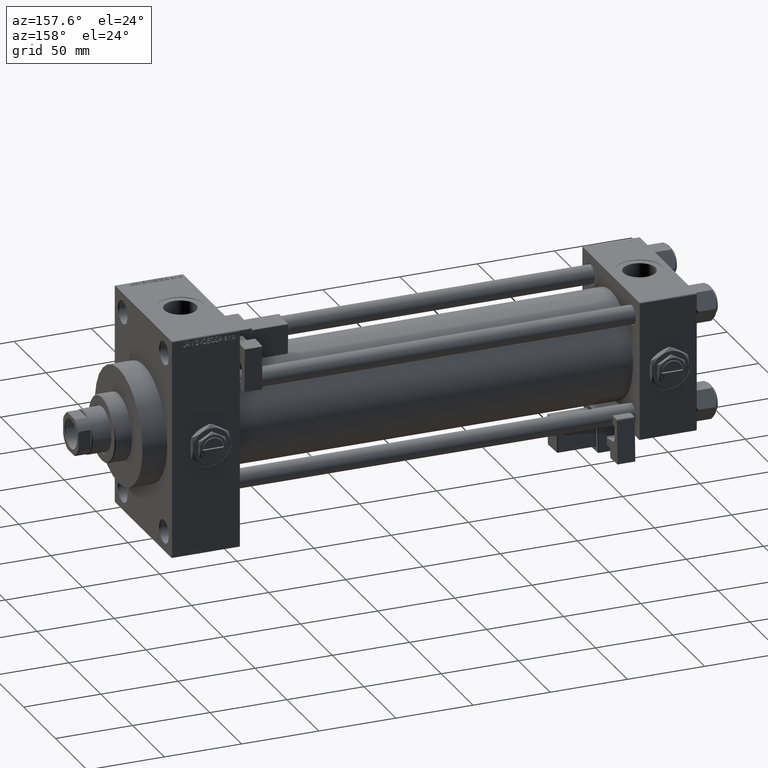
[diagram: clean part render]
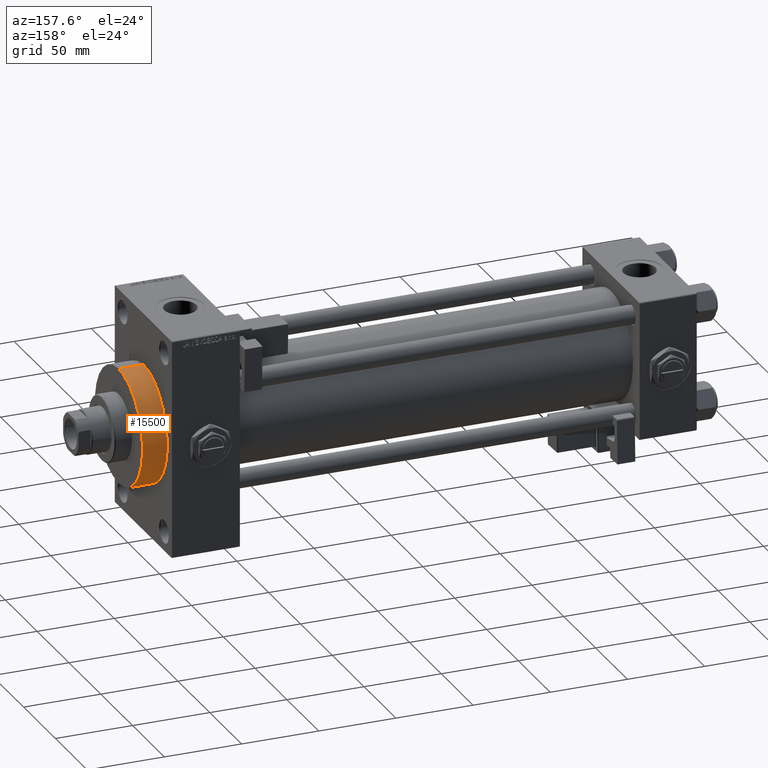
[diagram: same view with one face highlighted and labeled with its STEP entity id]
A machine part, auxiliary view. The second image highlights one B-rep face of the part: STEP entity #15500.
In plain terms, the highlighted cylindrical surface (partial cylindrical patch) has radius 37.5 mm, axis along (-1, -0, -0).
Its self-contained STEP definition (entity closure, byte-faithful):
#2136 = VERTEX_POINT ( 'NONE', #34036 ) ;
#2196 = CIRCLE ( 'NONE', #45398, 37.50000000000000711 ) ;
#4051 = ORIENTED_EDGE ( 'NONE', *, *, #48049, .T. ) ;
#5483 = CARTESIAN_POINT ( 'NONE',  ( 356.0000000000000000, 4.592425496802575156E-15, -37.50000000000000711 ) ) ;
#5594 = DIRECTION ( 'NONE',  ( -1.000000000000000000, -0.000000000000000000, -0.000000000000000000 ) ) ;
#6294 = DIRECTION ( 'NONE',  ( 0.000000000000000000, 0.000000000000000000, -1.000000000000000000 ) ) ;
#8312 = DIRECTION ( 'NONE',  ( 0.000000000000000000, 0.000000000000000000, -1.000000000000000000 ) ) ;
#12064 = VERTEX_POINT ( 'NONE', #25364 ) ;
#12457 = DIRECTION ( 'NONE',  ( 1.000000000000000000, 0.000000000000000000, 0.000000000000000000 ) ) ;
#13325 = EDGE_CURVE ( 'NONE', #47056, #12064, #2196, .T. ) ;
#14442 = LINE ( 'NONE', #42067, #18059 ) ;
#15500 = ADVANCED_FACE ( 'NONE', ( #49846 ), #25366, .T. ) ;
#16039 = EDGE_LOOP ( 'NONE', ( #30280, #48341, #4051, #34294 ) ) ;
#18059 = VECTOR ( 'NONE', #34252, 1000.000000000000000 ) ;
#25364 = CARTESIAN_POINT ( 'NONE',  ( 356.0000000000000000, 0.000000000000000000, 37.50000000000000711 ) ) ;
#25366 = CYLINDRICAL_SURFACE ( 'NONE', #47166, 37.50000000000000711 ) ;
#26581 = CARTESIAN_POINT ( 'NONE',  ( 356.0000000000000000, 0.000000000000000000, 0.000000000000000000 ) ) ;
#26678 = AXIS2_PLACEMENT_3D ( 'NONE', #48165, #12457, #8312 ) ;
#29193 = EDGE_CURVE ( 'NONE', #12064, #49531, #50978, .T. ) ;
#29799 = CARTESIAN_POINT ( 'NONE',  ( 339.9999999999999432, 0.000000000000000000, 37.50000000000000711 ) ) ;
#30280 = ORIENTED_EDGE ( 'NONE', *, *, #13325, .F. ) ;
#30442 = EDGE_CURVE ( 'NONE', #47056, #2136, #14442, .T. ) ;
#33353 = CIRCLE ( 'NONE', #26678, 37.50000000000000711 ) ;
#34036 = CARTESIAN_POINT ( 'NONE',  ( 339.9999999999999432, 4.592425496802575156E-15, -37.50000000000000711 ) ) ;
#34252 = DIRECTION ( 'NONE',  ( -1.000000000000000000, -0.000000000000000000, -0.000000000000000000 ) ) ;
#34294 = ORIENTED_EDGE ( 'NONE', *, *, #29193, .F. ) ;
#34414 = DIRECTION ( 'NONE',  ( 1.000000000000000000, 0.000000000000000000, 0.000000000000000000 ) ) ;
#38002 = VECTOR ( 'NONE', #39504, 1000.000000000000000 ) ;
#39504 = DIRECTION ( 'NONE',  ( -1.000000000000000000, -0.000000000000000000, -0.000000000000000000 ) ) ;
#41263 = CARTESIAN_POINT ( 'NONE',  ( 356.0000000000000000, 0.000000000000000000, 0.000000000000000000 ) ) ;
#42067 = CARTESIAN_POINT ( 'NONE',  ( 356.0000000000000000, 4.592425496802575156E-15, -37.50000000000000711 ) ) ;
#45398 = AXIS2_PLACEMENT_3D ( 'NONE', #26581, #34414, #6294 ) ;
#45930 = DIRECTION ( 'NONE',  ( 0.000000000000000000, 0.000000000000000000, 1.000000000000000000 ) ) ;
#47056 = VERTEX_POINT ( 'NONE', #5483 ) ;
#47166 = AXIS2_PLACEMENT_3D ( 'NONE', #41263, #5594, #45930 ) ;
#47310 = CARTESIAN_POINT ( 'NONE',  ( 356.0000000000000000, 0.000000000000000000, 37.50000000000000711 ) ) ;
#48049 = EDGE_CURVE ( 'NONE', #2136, #49531, #33353, .T. ) ;
#48165 = CARTESIAN_POINT ( 'NONE',  ( 339.9999999999999432, 0.000000000000000000, 0.000000000000000000 ) ) ;
#48341 = ORIENTED_EDGE ( 'NONE', *, *, #30442, .T. ) ;
#49531 = VERTEX_POINT ( 'NONE', #29799 ) ;
#49846 = FACE_OUTER_BOUND ( 'NONE', #16039, .T. ) ;
#50978 = LINE ( 'NONE', #47310, #38002 ) ;